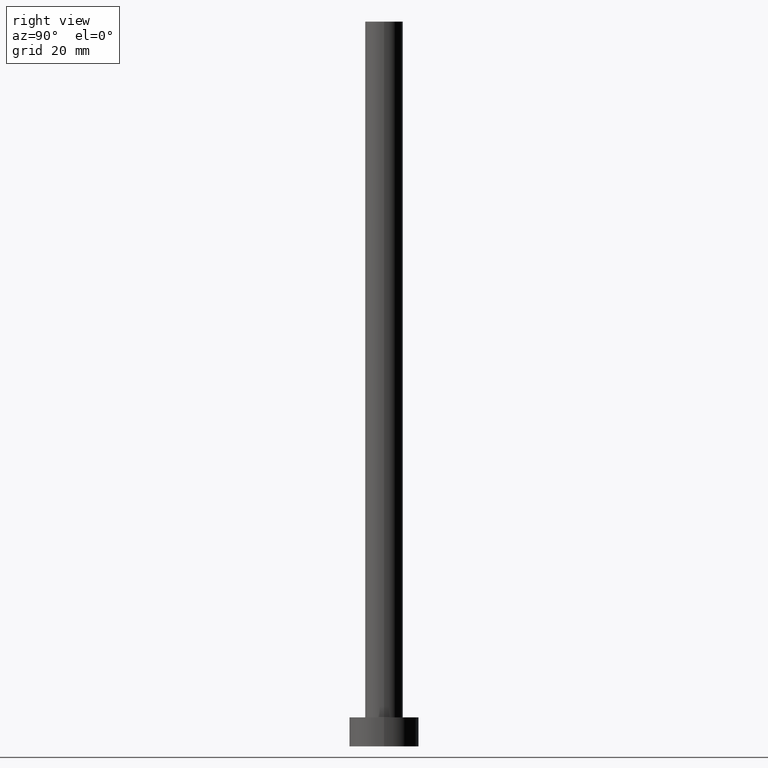
[diagram: clean part render]
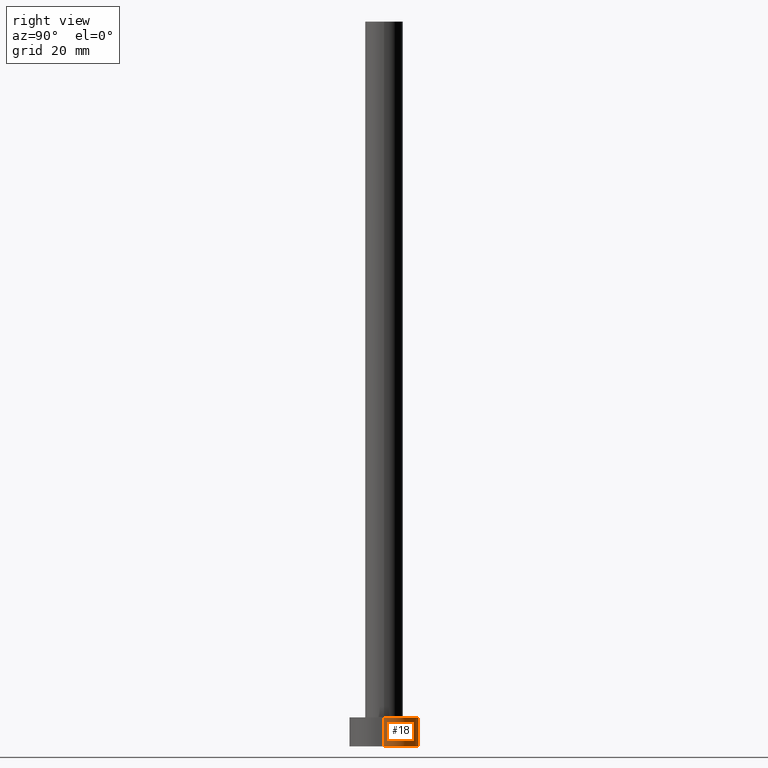
[diagram: same view with one face highlighted and labeled with its STEP entity id]
A machine part, right view. The second image highlights one B-rep face of the part: STEP entity #18.
In plain terms, the highlighted cylindrical surface (edge-blend (fillet) strip) has radius 6 mm, axis along (-0, -0, -1).
Its self-contained STEP definition (entity closure, byte-faithful):
#5 = ORIENTED_EDGE ( 'NONE', *, *, #147, .F. ) ;
#18 = ADVANCED_FACE ( 'NONE', ( #67 ), #72, .T. ) ;
#19 = DIRECTION ( 'NONE',  ( 1.000000000000000000, 0.000000000000000000, 0.000000000000000000 ) ) ;
#20 = CIRCLE ( 'NONE', #212, 6.000000000000000888 ) ;
#22 = CARTESIAN_POINT ( 'NONE',  ( 6.000000000000000888, 7.347880794884120722E-16, 5.000000000000000000 ) ) ;
#23 = CARTESIAN_POINT ( 'NONE',  ( -6.000000000000000888, 0.000000000000000000, 0.000000000000000000 ) ) ;
#24 = LINE ( 'NONE', #22, #207 ) ;
#29 = CARTESIAN_POINT ( 'NONE',  ( -6.000000000000000888, 0.000000000000000000, 5.000000000000000000 ) ) ;
#32 = VERTEX_POINT ( 'NONE', #204 ) ;
#35 = EDGE_CURVE ( 'NONE', #32, #130, #24, .T. ) ;
#43 = CARTESIAN_POINT ( 'NONE',  ( 0.000000000000000000, 0.000000000000000000, 5.000000000000000000 ) ) ;
#48 = DIRECTION ( 'NONE',  ( -0.000000000000000000, -0.000000000000000000, -1.000000000000000000 ) ) ;
#50 = LINE ( 'NONE', #29, #52 ) ;
#52 = VECTOR ( 'NONE', #209, 1000.000000000000000 ) ;
#58 = CARTESIAN_POINT ( 'NONE',  ( 0.000000000000000000, 0.000000000000000000, 0.000000000000000000 ) ) ;
#67 = FACE_OUTER_BOUND ( 'NONE', #170, .T. ) ;
#69 = DIRECTION ( 'NONE',  ( -1.000000000000000000, 0.000000000000000000, 0.000000000000000000 ) ) ;
#72 = CYLINDRICAL_SURFACE ( 'NONE', #188, 6.000000000000000888 ) ;
#78 = ORIENTED_EDGE ( 'NONE', *, *, #103, .T. ) ;
#88 = CARTESIAN_POINT ( 'NONE',  ( -6.000000000000000888, 0.000000000000000000, 5.000000000000000000 ) ) ;
#103 = EDGE_CURVE ( 'NONE', #130, #112, #168, .T. ) ;
#112 = VERTEX_POINT ( 'NONE', #23 ) ;
#115 = ORIENTED_EDGE ( 'NONE', *, *, #166, .F. ) ;
#123 = DIRECTION ( 'NONE',  ( 0.000000000000000000, 0.000000000000000000, 1.000000000000000000 ) ) ;
#130 = VERTEX_POINT ( 'NONE', #200 ) ;
#140 = DIRECTION ( 'NONE',  ( -0.000000000000000000, -0.000000000000000000, -1.000000000000000000 ) ) ;
#147 = EDGE_CURVE ( 'NONE', #32, #165, #20, .T. ) ;
#165 = VERTEX_POINT ( 'NONE', #88 ) ;
#166 = EDGE_CURVE ( 'NONE', #165, #112, #50, .T. ) ;
#168 = CIRCLE ( 'NONE', #205, 6.000000000000000888 ) ;
#170 = EDGE_LOOP ( 'NONE', ( #5, #208, #78, #115 ) ) ;
#177 = DIRECTION ( 'NONE',  ( 1.000000000000000000, 0.000000000000000000, 0.000000000000000000 ) ) ;
#188 = AXIS2_PLACEMENT_3D ( 'NONE', #224, #48, #69 ) ;
#200 = CARTESIAN_POINT ( 'NONE',  ( 6.000000000000000888, 7.347880794884120722E-16, 0.000000000000000000 ) ) ;
#204 = CARTESIAN_POINT ( 'NONE',  ( 6.000000000000000888, 7.347880794884120722E-16, 5.000000000000000000 ) ) ;
#205 = AXIS2_PLACEMENT_3D ( 'NONE', #58, #206, #177 ) ;
#206 = DIRECTION ( 'NONE',  ( 0.000000000000000000, 0.000000000000000000, 1.000000000000000000 ) ) ;
#207 = VECTOR ( 'NONE', #140, 1000.000000000000000 ) ;
#208 = ORIENTED_EDGE ( 'NONE', *, *, #35, .T. ) ;
#209 = DIRECTION ( 'NONE',  ( -0.000000000000000000, -0.000000000000000000, -1.000000000000000000 ) ) ;
#212 = AXIS2_PLACEMENT_3D ( 'NONE', #43, #123, #19 ) ;
#224 = CARTESIAN_POINT ( 'NONE',  ( 0.000000000000000000, 0.000000000000000000, 5.000000000000000000 ) ) ;